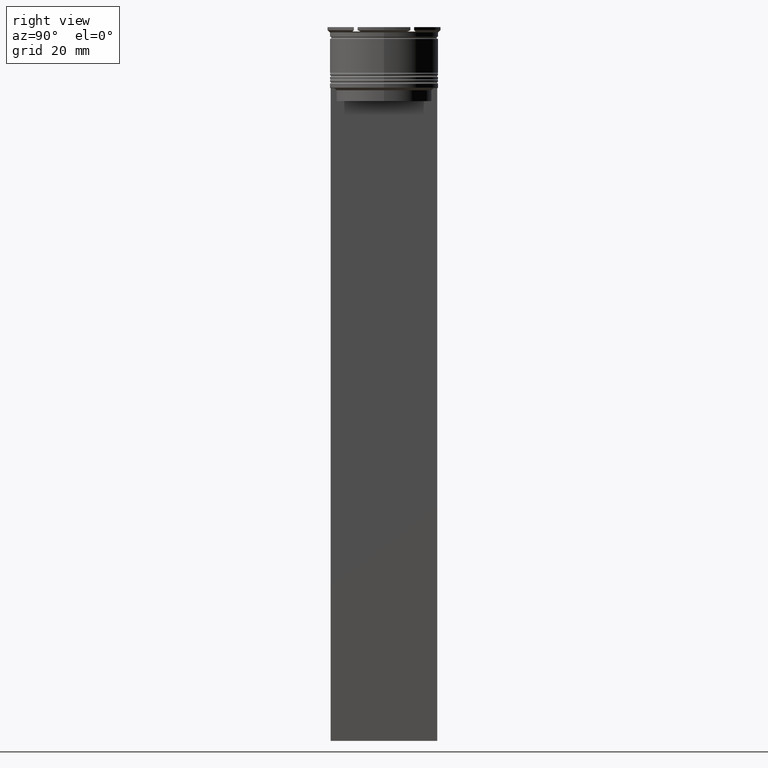
[diagram: clean part render]
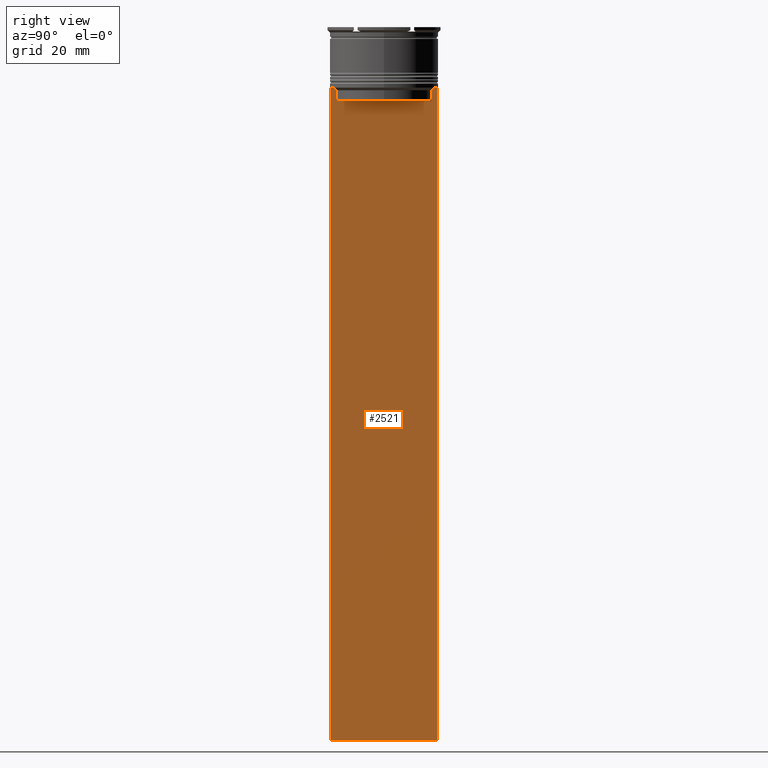
[diagram: same view with one face highlighted and labeled with its STEP entity id]
A machine part, right view. The second image highlights one B-rep face of the part: STEP entity #2521.
In plain terms, the highlighted planar face has unit normal (-1, 0, 0).
Its self-contained STEP definition (entity closure, byte-faithful):
#63 = CARTESIAN_POINT ( 'NONE',  ( 0.5000000000000002220, 10.88852607105296144, -17.00000000000000000 ) ) ;
#110 = CARTESIAN_POINT ( 'NONE',  ( 0.5000000000000002220, -10.88852607105296322, 0.000000000000000000 ) ) ;
#123 = DIRECTION ( 'NONE',  ( 0.000000000000000000, -1.000000000000000000, 0.000000000000000000 ) ) ;
#128 = DIRECTION ( 'NONE',  ( -0.000000000000000000, -0.000000000000000000, 1.000000000000000000 ) ) ;
#132 = EDGE_CURVE ( 'NONE', #2075, #2570, #1247, .T. ) ;
#153 = EDGE_CURVE ( 'NONE', #234, #1503, #1257, .T. ) ;
#234 = VERTEX_POINT ( 'NONE', #446 ) ;
#242 = VECTOR ( 'NONE', #2529, 1000.000000000000000 ) ;
#294 = CARTESIAN_POINT ( 'NONE',  ( 0.5000000000000002220, -10.88852607105296322, -14.50000000000000000 ) ) ;
#388 = CARTESIAN_POINT ( 'NONE',  ( 0.5000000000000002220, 12.24999999999999289, -163.9999999999999716 ) ) ;
#446 = CARTESIAN_POINT ( 'NONE',  ( 0.5000000000000002220, -12.25000000000000711, -163.9999999999999716 ) ) ;
#474 = VECTOR ( 'NONE', #941, 1000.000000000000000 ) ;
#486 = LINE ( 'NONE', #2433, #1276 ) ;
#521 = ORIENTED_EDGE ( 'NONE', *, *, #2467, .F. ) ;
#575 = ORIENTED_EDGE ( 'NONE', *, *, #2121, .T. ) ;
#622 = CARTESIAN_POINT ( 'NONE',  ( 0.5000000000000002220, -10.88852607105296144, -17.00000000000000000 ) ) ;
#631 = ORIENTED_EDGE ( 'NONE', *, *, #2272, .T. ) ;
#683 = ORIENTED_EDGE ( 'NONE', *, *, #2534, .T. ) ;
#703 = VECTOR ( 'NONE', #1844, 1000.000000000000000 ) ;
#734 = CARTESIAN_POINT ( 'NONE',  ( 0.5000000000000002220, -11.38902980942626719, -14.00000000000000178 ) ) ;
#750 = PLANE ( 'NONE',  #2514 ) ;
#762 = DIRECTION ( 'NONE',  ( -1.000000000000000000, 0.000000000000000000, 0.000000000000000000 ) ) ;
#809 = CARTESIAN_POINT ( 'NONE',  ( 0.5000000000000002220, -11.22219891450652973, -14.16667035398018903 ) ) ;
#813 = ORIENTED_EDGE ( 'NONE', *, *, #132, .T. ) ;
#820 = VERTEX_POINT ( 'NONE', #63 ) ;
#839 = EDGE_CURVE ( 'NONE', #2584, #1994, #1662, .T. ) ;
#866 = CARTESIAN_POINT ( 'NONE',  ( 0.5000000000000002220, -12.25000000000000711, -163.9999999999999716 ) ) ;
#903 = DIRECTION ( 'NONE',  ( 0.000000000000000000, -1.000000000000000000, 0.000000000000000000 ) ) ;
#908 = EDGE_CURVE ( 'NONE', #820, #2179, #2493, .T. ) ;
#923 = CARTESIAN_POINT ( 'NONE',  ( 0.5000000000000002220, 10.88852607105296322, -14.50000000000000000 ) ) ;
#941 = DIRECTION ( 'NONE',  ( 0.000000000000000000, 0.000000000000000000, -1.000000000000000000 ) ) ;
#962 = DIRECTION ( 'NONE',  ( 0.000000000000000000, 0.000000000000000000, -1.000000000000000000 ) ) ;
#976 = CARTESIAN_POINT ( 'NONE',  ( 0.5000000000000002220, 12.24999999999999289, 10.52039967047845792 ) ) ;
#984 = LINE ( 'NONE', #1141, #1837 ) ;
#1033 = ORIENTED_EDGE ( 'NONE', *, *, #1582, .T. ) ;
#1034 = CARTESIAN_POINT ( 'NONE',  ( 0.5000000000000002220, -10.88852607105296322, -14.50000000000000000 ) ) ;
#1053 = CARTESIAN_POINT ( 'NONE',  ( 0.5000000000000002220, 12.24999999999999289, -14.00000000000000178 ) ) ;
#1099 = VECTOR ( 'NONE', #128, 1000.000000000000000 ) ;
#1129 = EDGE_LOOP ( 'NONE', ( #1726, #2196, #575, #1601, #1033, #813, #631, #683, #1296, #521 ) ) ;
#1131 = CARTESIAN_POINT ( 'NONE',  ( 0.5000000000000002220, 11.38902980942626719, -14.00000000000000178 ) ) ;
#1141 = CARTESIAN_POINT ( 'NONE',  ( 0.5000000000000002220, -12.25000000000000711, -14.00000000000000178 ) ) ;
#1145 = EDGE_CURVE ( 'NONE', #1767, #2584, #486, .T. ) ;
#1159 = CARTESIAN_POINT ( 'NONE',  ( 0.5000000000000002220, -12.25000000000000711, 10.52039967047845792 ) ) ;
#1247 = B_SPLINE_CURVE_WITH_KNOTS ( 'NONE', 3,
 ( #1034, #1899, #809, #1270 ),
 .UNSPECIFIED., .F., .F.,
 ( 4, 4 ),
 ( 0.05041323384703228633, 0.05112713601261608537 ),
 .UNSPECIFIED. ) ;
#1257 = LINE ( 'NONE', #866, #242 ) ;
#1270 = CARTESIAN_POINT ( 'NONE',  ( 0.5000000000000002220, -11.38902980942626719, -14.00000000000000178 ) ) ;
#1276 = VECTOR ( 'NONE', #2662, 1000.000000000000000 ) ;
#1282 = VECTOR ( 'NONE', #962, 1000.000000000000000 ) ;
#1296 = ORIENTED_EDGE ( 'NONE', *, *, #153, .T. ) ;
#1439 = CARTESIAN_POINT ( 'NONE',  ( 0.5000000000000002220, 11.38902980942626719, -14.00000000000000178 ) ) ;
#1446 = CARTESIAN_POINT ( 'NONE',  ( 0.5000000000000002220, 10.90000000000000213, -17.00000000000000000 ) ) ;
#1503 = VERTEX_POINT ( 'NONE', #388 ) ;
#1582 = EDGE_CURVE ( 'NONE', #2179, #2075, #2027, .T. ) ;
#1601 = ORIENTED_EDGE ( 'NONE', *, *, #908, .T. ) ;
#1618 = CARTESIAN_POINT ( 'NONE',  ( 0.5000000000000002220, -12.25000000000000711, 10.52039967047845792 ) ) ;
#1644 = DIRECTION ( 'NONE',  ( 0.000000000000000000, 0.000000000000000000, 1.000000000000000000 ) ) ;
#1662 = B_SPLINE_CURVE_WITH_KNOTS ( 'NONE', 3,
 ( #1131, #2034, #2003, #923 ),
 .UNSPECIFIED., .F., .F.,
 ( 4, 4 ),
 ( 0.01935560801904634073, 0.02006307108468586772 ),
 .UNSPECIFIED. ) ;
#1689 = VECTOR ( 'NONE', #123, 1000.000000000000000 ) ;
#1726 = ORIENTED_EDGE ( 'NONE', *, *, #1145, .T. ) ;
#1767 = VERTEX_POINT ( 'NONE', #1053 ) ;
#1837 = VECTOR ( 'NONE', #903, 1000.000000000000000 ) ;
#1844 = DIRECTION ( 'NONE',  ( 0.000000000000000000, 0.000000000000000000, -1.000000000000000000 ) ) ;
#1899 = CARTESIAN_POINT ( 'NONE',  ( 0.5000000000000002220, -11.05536450423839057, -14.33333718996393280 ) ) ;
#1994 = VERTEX_POINT ( 'NONE', #2696 ) ;
#2003 = CARTESIAN_POINT ( 'NONE',  ( 0.5000000000000002220, 11.05536450345590538, -14.33333719074559376 ) ) ;
#2025 = CARTESIAN_POINT ( 'NONE',  ( 0.5000000000000002220, 10.88852607105296322, 0.000000000000000000 ) ) ;
#2027 = LINE ( 'NONE', #110, #1099 ) ;
#2034 = CARTESIAN_POINT ( 'NONE',  ( 0.5000000000000002220, 11.22219891375843304, -14.16667035472756808 ) ) ;
#2075 = VERTEX_POINT ( 'NONE', #294 ) ;
#2121 = EDGE_CURVE ( 'NONE', #1994, #820, #2227, .T. ) ;
#2179 = VERTEX_POINT ( 'NONE', #622 ) ;
#2196 = ORIENTED_EDGE ( 'NONE', *, *, #839, .T. ) ;
#2227 = LINE ( 'NONE', #2025, #474 ) ;
#2235 = FACE_OUTER_BOUND ( 'NONE', #1129, .T. ) ;
#2272 = EDGE_CURVE ( 'NONE', #2570, #2760, #984, .T. ) ;
#2275 = LINE ( 'NONE', #1159, #1282 ) ;
#2433 = CARTESIAN_POINT ( 'NONE',  ( 0.5000000000000002220, -12.25000000000000711, -14.00000000000000178 ) ) ;
#2462 = LINE ( 'NONE', #976, #703 ) ;
#2467 = EDGE_CURVE ( 'NONE', #1767, #1503, #2462, .T. ) ;
#2493 = LINE ( 'NONE', #1446, #1689 ) ;
#2514 = AXIS2_PLACEMENT_3D ( 'NONE', #1618, #762, #1644 ) ;
#2521 = ADVANCED_FACE ( 'NONE', ( #2235 ), #750, .F. ) ;
#2529 = DIRECTION ( 'NONE',  ( 0.000000000000000000, 1.000000000000000000, 0.000000000000000000 ) ) ;
#2534 = EDGE_CURVE ( 'NONE', #2760, #234, #2275, .T. ) ;
#2570 = VERTEX_POINT ( 'NONE', #734 ) ;
#2576 = CARTESIAN_POINT ( 'NONE',  ( 0.5000000000000002220, -12.25000000000000711, -14.00000000000000178 ) ) ;
#2584 = VERTEX_POINT ( 'NONE', #1439 ) ;
#2662 = DIRECTION ( 'NONE',  ( 0.000000000000000000, -1.000000000000000000, 0.000000000000000000 ) ) ;
#2696 = CARTESIAN_POINT ( 'NONE',  ( 0.5000000000000002220, 10.88852607105296322, -14.50000000000000000 ) ) ;
#2760 = VERTEX_POINT ( 'NONE', #2576 ) ;